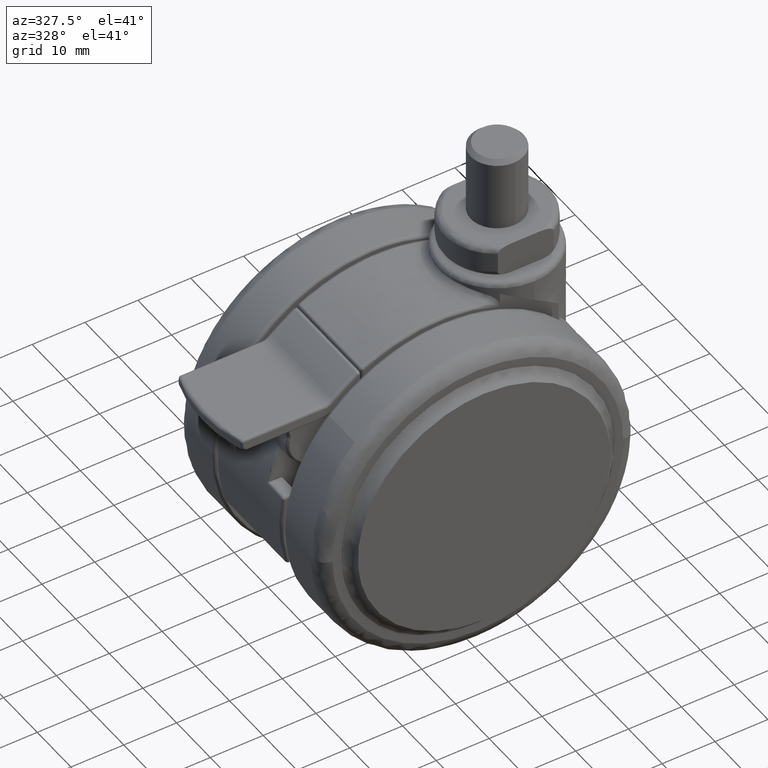
[diagram: clean part render]
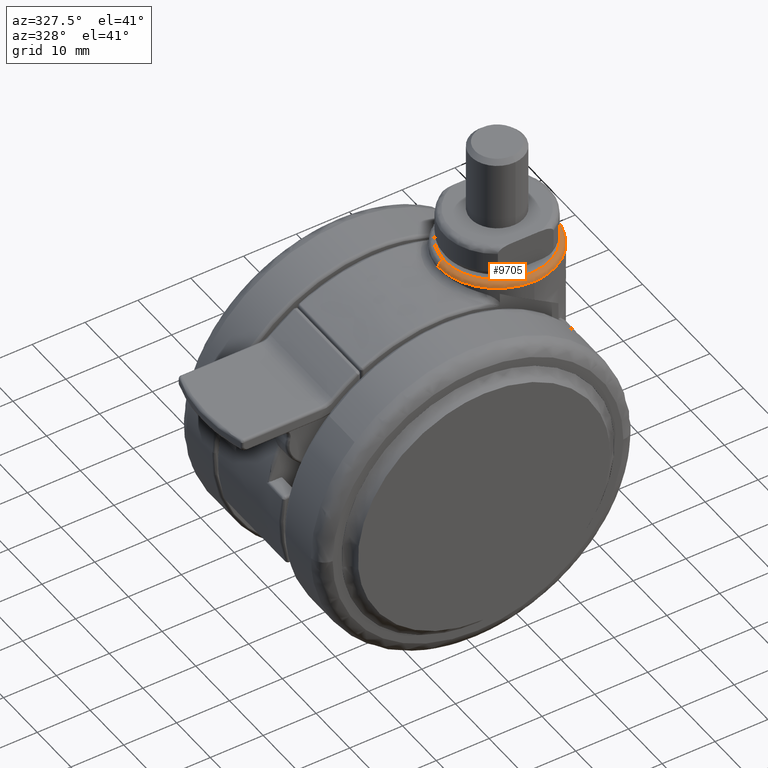
[diagram: same view with one face highlighted and labeled with its STEP entity id]
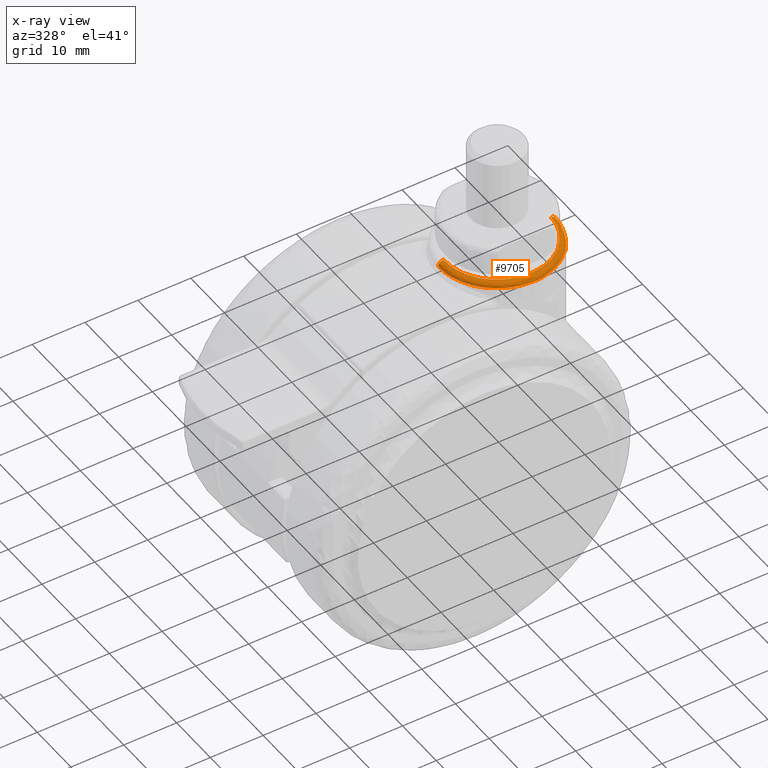
[diagram: x-ray of the same camera — body ghosted, the highlighted face saturated]
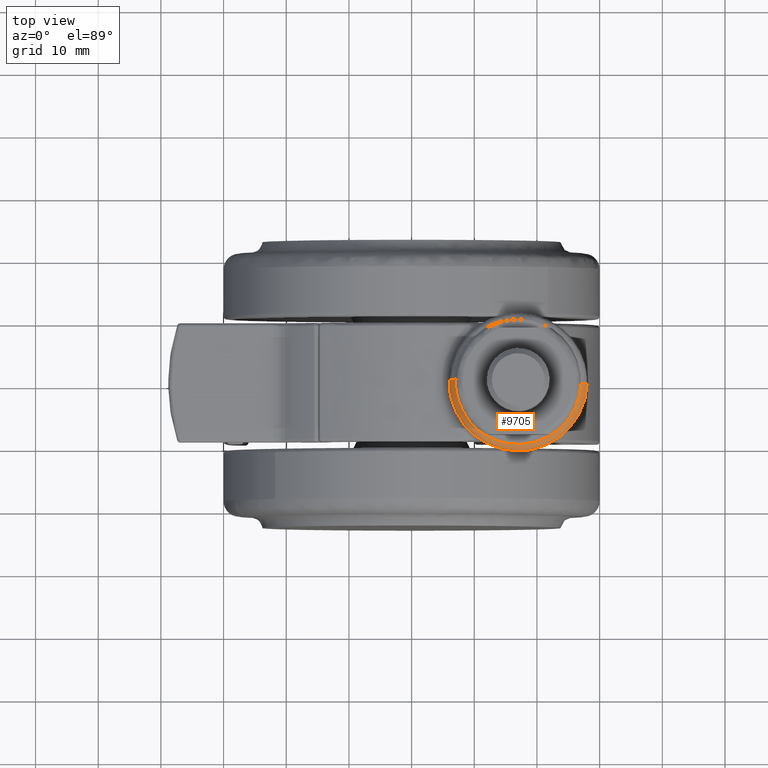
[diagram: same view with one face highlighted and labeled with its STEP entity id]
A machine part, auxiliary view. The second image highlights one B-rep face of the part: STEP entity #9705.
The next image is the same camera in x-ray: the body ghosted, the highlighted face saturated — about 0% of this face is hidden behind the body in this view.
A second angle (top view) of the same face is appended — the face is thin or edge-on in the first view.
In plain terms, the highlighted face is a freeform B-spline surface patch.
Its self-contained STEP definition (entity closure, byte-faithful):
#9448=CARTESIAN_POINT('',(7.003158100947678,0.251300955033403,32.0));
#9449=VERTEX_POINT('',#9448);
#9474=CARTESIAN_POINT('',(7.000000000000001,0.0,32.0));
#9475=VERTEX_POINT('',#9474);
#9476=CARTESIAN_POINT('',(7.003158100947678,0.251300955033403,31.999999999999996));
#9477=CARTESIAN_POINT('',(6.999999996884766,0.125670321533915,32.000000000000007));
#9478=CARTESIAN_POINT('',(7.000000000000001,0.0,32.0));
#9486=(BOUNDED_CURVE()B_SPLINE_CURVE(2,(#9476,#9477,#9478),.UNSPECIFIED.,.F.,.U.)B_SPLINE_CURVE_WITH_KNOTS((3,3),(0.495579891762046,0.500000000000000),.UNSPECIFIED.)CURVE()GEOMETRIC_REPRESENTATION_ITEM()RATIONAL_B_SPLINE_CURVE((0.989826157664034,0.994821521082728,1.0))REPRESENTATION_ITEM(''));
#9487=EDGE_CURVE('',#9449,#9475,#9486,.T.);
#9489=CARTESIAN_POINT('',(26.996841899052331,-0.251300955033401,32.0));
#9490=VERTEX_POINT('',#9489);
#9491=CARTESIAN_POINT('',(7.000000000000001,0.0,32.0));
#9492=CARTESIAN_POINT('',(6.999687527351299,-0.892761281839456,32.000000000000050));
#9493=CARTESIAN_POINT('',(7.202488779453803,-2.393986860286845,31.999999999999940));
#9494=CARTESIAN_POINT('',(7.975792458503126,-4.454057953210859,32.000000000000043));
#9495=CARTESIAN_POINT('',(8.962943033507392,-6.050111508397086,31.999999999999989));
#9496=CARTESIAN_POINT('',(10.064587325621989,-7.250223568668024,32.000000000000007));
#9497=CARTESIAN_POINT('',(11.100470015203509,-8.102017673811824,31.999999999999972));
#9498=CARTESIAN_POINT('',(12.159752084587890,-8.784821355512760,31.999999999999989));
#9499=CARTESIAN_POINT('',(13.596316252320980,-9.458843867010423,32.000000000000213));
#9500=CARTESIAN_POINT('',(15.211832510052931,-9.892296589782289,31.999999999999421));
#9501=CARTESIAN_POINT('',(16.752295847559608,-10.024375302611100,32.000000000000661));
#9502=CARTESIAN_POINT('',(18.214006556539239,-9.962682671317760,31.999999999999719));
#9503=CARTESIAN_POINT('',(19.574928908583921,-9.703357009397204,31.999999999999950));
#9504=CARTESIAN_POINT('',(20.992785652384459,-9.201013392716908,32.000000000000242));
#9505=CARTESIAN_POINT('',(22.404420277064439,-8.476241992803928,31.999999999999918));
#9506=CARTESIAN_POINT('',(23.929897595284480,-7.314542103546056,32.000000000000419));
#9507=CARTESIAN_POINT('',(25.228979073087089,-5.793411722349694,32.000000000000341));
#9508=CARTESIAN_POINT('',(26.106941150343768,-4.231240217627024,31.999999999999439));
#9509=CARTESIAN_POINT('',(26.769577122889309,-2.437400213556487,31.999999999998490));
#9510=CARTESIAN_POINT('',(26.975669807024389,-1.103208887650086,32.000000000002700));
#9511=CARTESIAN_POINT('',(26.996841899052331,-0.251300955033401,32.0));
#9512=B_SPLINE_CURVE_WITH_KNOTS('',3,(#9491,#9492,#9493,#9494,#9495,#9496,#9497,#9498,#9499,#9500,#9501,#9502,#9503,#9504,#9505,#9506,#9507,#9508,#9509,#9510,#9511),.UNSPECIFIED.,.F.,.U.,(4,1,1,1,1,1,1,1,1,1,1,1,1,1,1,1,1,1,4),(-0.000004343245674,2.678196571601571,4.504252038934606,6.573820723153951,8.278152313060005,9.373799074464184,10.591170262729690,12.052018946259970,14.121592510195200,15.582427993318079,16.678000440440162,18.504053672313901,19.721447276395409,21.182297344751689,23.251852574094261,25.443147252886799,27.147486990911581,28.608349270624409,31.164789301871529),.UNSPECIFIED.);
#9513=EDGE_CURVE('',#9475,#9490,#9512,.T.);
#9597=CARTESIAN_POINT('',(6.013633242241499,0.583728870022106,30.930275815455541));
#9598=CARTESIAN_POINT('',(6.009792540273064,0.430944371361822,30.930275815455541));
#9599=CARTESIAN_POINT('',(5.729536950727262,-10.717723267363112,30.930275815455534));
#9600=CARTESIAN_POINT('',(16.723630109045185,-10.994093158317924,30.930275815455541));
#9601=CARTESIAN_POINT('',(27.717723267363116,-11.270463049272738,30.930275815455534));
#9602=CARTESIAN_POINT('',(27.997978856901810,-0.121795410830321,30.930275815455545));
#9603=CARTESIAN_POINT('',(28.001819558863307,0.030989087553970,30.930275815455538));
#9604=CARTESIAN_POINT('',(5.933541957611560,0.587984289134402,32.077335681492720));
#9605=CARTESIAN_POINT('',(5.929673256691212,0.434085982147939,32.077335681492713));
#9606=CARTESIAN_POINT('',(5.647374586781686,-10.795856124541313,32.077335681492706));
#9607=CARTESIAN_POINT('',(16.721615355661509,-11.074240768879815,32.077335681492727));
#9608=CARTESIAN_POINT('',(27.795856124541302,-11.352625413218314,32.077335681492706));
#9609=CARTESIAN_POINT('',(28.078154794443698,-0.122683306813635,32.077335681492727));
#9610=CARTESIAN_POINT('',(28.082023495357038,0.031214999894822,32.077335681492720));
#9611=CARTESIAN_POINT('',(7.079463611834701,0.527099051357213,31.997592350549944));
#9612=CARTESIAN_POINT('',(7.075995511372184,0.389136773934008,31.997592350549951));
#9613=CARTESIAN_POINT('',(6.822928611697418,-9.677955052526826,31.997592350549947));
#9614=CARTESIAN_POINT('',(16.750441832112127,-9.927513220414706,31.997592350549947));
#9615=CARTESIAN_POINT('',(26.677955052526830,-10.177071388302585,31.997592350549947));
#9616=CARTESIAN_POINT('',(26.931021952195177,-0.109979562096856,31.997592350549944));
#9617=CARTESIAN_POINT('',(26.934490052651434,0.027982715077129,31.997592350549947));
#9625=(BOUNDED_SURFACE()B_SPLINE_SURFACE(2,2,((#9597,#9604,#9611),(#9598,#9605,#9612),(#9599,#9606,#9613),(#9600,#9607,#9614),(#9601,#9608,#9615),(#9602,#9609,#9616),(#9603,#9610,#9617)),.UNSPECIFIED.,.F.,.F.,.U.)B_SPLINE_SURFACE_WITH_KNOTS((3,1,2,1,3),(3,3),(0.0,0.364427289993148,18.585791760840099,36.807156231687053,37.171583521010227),(0.0,1.822727139686502),.UNSPECIFIED.)GEOMETRIC_REPRESENTATION_ITEM()RATIONAL_B_SPLINE_SURFACE(((0.921564716027568,0.606435493463404,0.926697837823401),(0.916228828707186,0.602924213784480,0.921332229574008),(0.644098575789570,0.423848950436964,0.647686209279166),(0.910892941386805,0.599412934105556,0.915966621324616),(0.644098575789570,0.423848950436964,0.647686209279166),(0.916228828697377,0.602924213778025,0.921332229564144),(0.921564716007948,0.606435493450493,0.926697837803673)))REPRESENTATION_ITEM('')SURFACE());
#9626=CARTESIAN_POINT('',(6.000000000000002,0.0,31.0));
#9627=VERTEX_POINT('',#9626);
#9628=CARTESIAN_POINT('',(6.003473917885817,0.276431049960777,31.000000000454630));
#9629=VERTEX_POINT('',#9628);
#9630=CARTESIAN_POINT('',(6.000000000000002,0.0,31.0));
#9631=CARTESIAN_POINT('',(6.000000000000003,0.138237353399228,31.000000000227313));
#9632=CARTESIAN_POINT('',(6.003473917885817,0.276431049960777,31.000000000454627));
#9640=(BOUNDED_CURVE()B_SPLINE_CURVE(2,(#9630,#9631,#9632),.UNSPECIFIED.,.F.,.U.)B_SPLINE_CURVE_WITH_KNOTS((3,3),(0.500000000000000,0.504420108231530),.UNSPECIFIED.)CURVE()GEOMETRIC_REPRESENTATION_ITEM()RATIONAL_B_SPLINE_CURVE((1.0,0.994821521090253,0.989826157678553))REPRESENTATION_ITEM(''));
#9641=EDGE_CURVE('',#9627,#9629,#9640,.T.);
#9642=ORIENTED_EDGE('',*,*,#9641,.F.);
#9643=CARTESIAN_POINT('',(17.043649618784560,-10.999913395603620,31.000000000231068));
#9644=VERTEX_POINT('',#9643);
#9645=CARTESIAN_POINT('',(17.043649618784553,-10.999913395603617,31.000000000231065));
#9646=CARTESIAN_POINT('',(17.021824895307365,-11.000000000000004,31.000000000230621));
#9647=CARTESIAN_POINT('',(17.0,-11.0,31.000000000230170));
#9648=CARTESIAN_POINT('',(6.000000000000003,-11.0,31.000000000002867));
#9649=CARTESIAN_POINT('',(6.000000000000002,0.0,31.0));
#9657=(BOUNDED_CURVE()B_SPLINE_CURVE(2,(#9645,#9646,#9647,#9648,#9649),.UNSPECIFIED.,.F.,.U.)B_SPLINE_CURVE_WITH_KNOTS((3,2,3),(0.249299097322040,0.250000000000000,0.500000000000000),.UNSPECIFIED.)CURVE()GEOMETRIC_REPRESENTATION_ITEM()RATIONAL_B_SPLINE_CURVE((0.998362287286521,0.999178841434310,1.0,0.707106781186548,1.0))REPRESENTATION_ITEM(''));
#9658=EDGE_CURVE('',#9644,#9627,#9657,.T.);
#9659=ORIENTED_EDGE('',*,*,#9658,.F.);
#9660=CARTESIAN_POINT('',(27.996526082114190,-0.276431049960777,31.000000000454630));
#9661=VERTEX_POINT('',#9660);
#9662=CARTESIAN_POINT('',(27.996526082114183,-0.276431049960777,31.000000000454630));
#9663=CARTESIAN_POINT('',(27.728024604932038,-10.957515889521172,31.000000000451863));
#9664=CARTESIAN_POINT('',(17.043649618784553,-10.999913395603617,31.000000000231065));
#9672=(BOUNDED_CURVE()B_SPLINE_CURVE(2,(#9662,#9663,#9664),.UNSPECIFIED.,.F.,.U.)B_SPLINE_CURVE_WITH_KNOTS((3,3),(0.004420108231530,0.249299097322040),.UNSPECIFIED.)CURVE()GEOMETRIC_REPRESENTATION_ITEM()RATIONAL_B_SPLINE_CURVE((0.989826157678553,0.713077381784100,0.998362287286521))REPRESENTATION_ITEM(''));
#9673=EDGE_CURVE('',#9661,#9644,#9672,.T.);
#9674=ORIENTED_EDGE('',*,*,#9673,.F.);
#9675=CARTESIAN_POINT('',(27.996526082114183,-0.276431049960777,31.000000000454630));
#9676=CARTESIAN_POINT('',(27.996526081655169,-0.276431050129022,31.999999993767560));
#9677=CARTESIAN_POINT('',(26.996841899052335,-0.251300955033401,32.0));
#9685=(BOUNDED_CURVE()B_SPLINE_CURVE(2,(#9675,#9676,#9677),.UNSPECIFIED.,.F.,.U.)B_SPLINE_CURVE_WITH_KNOTS((3,3),(-1.723441281516684,-0.263586885378181),.UNSPECIFIED.)CURVE()GEOMETRIC_REPRESENTATION_ITEM()RATIONAL_B_SPLINE_CURVE((0.883897566973690,0.626638728458201,0.888510406748396))REPRESENTATION_ITEM(''));
#9686=EDGE_CURVE('',#9661,#9490,#9685,.T.);
#9687=ORIENTED_EDGE('',*,*,#9686,.T.);
#9688=ORIENTED_EDGE('',*,*,#9513,.F.);
#9689=ORIENTED_EDGE('',*,*,#9487,.F.);
#9690=CARTESIAN_POINT('',(6.003473917885817,0.276431049960777,31.000000000454630));
#9691=CARTESIAN_POINT('',(6.003473918344822,0.276431050129023,31.999999993767545));
#9692=CARTESIAN_POINT('',(7.003158100947679,0.251300955033403,32.000000000000007));
#9700=(BOUNDED_CURVE()B_SPLINE_CURVE(2,(#9690,#9691,#9692),.UNSPECIFIED.,.F.,.U.)B_SPLINE_CURVE_WITH_KNOTS((3,3),(-1.723441281516685,-0.263586885378177),.UNSPECIFIED.)CURVE()GEOMETRIC_REPRESENTATION_ITEM()RATIONAL_B_SPLINE_CURVE((0.883897566973691,0.626638728458200,0.888510406748397))REPRESENTATION_ITEM(''));
#9701=EDGE_CURVE('',#9629,#9449,#9700,.T.);
#9702=ORIENTED_EDGE('',*,*,#9701,.F.);
#9703=EDGE_LOOP('',(#9642,#9659,#9674,#9687,#9688,#9689,#9702));
#9704=FACE_OUTER_BOUND('',#9703,.T.);
#9705=ADVANCED_FACE('',(#9704),#9625,.T.);